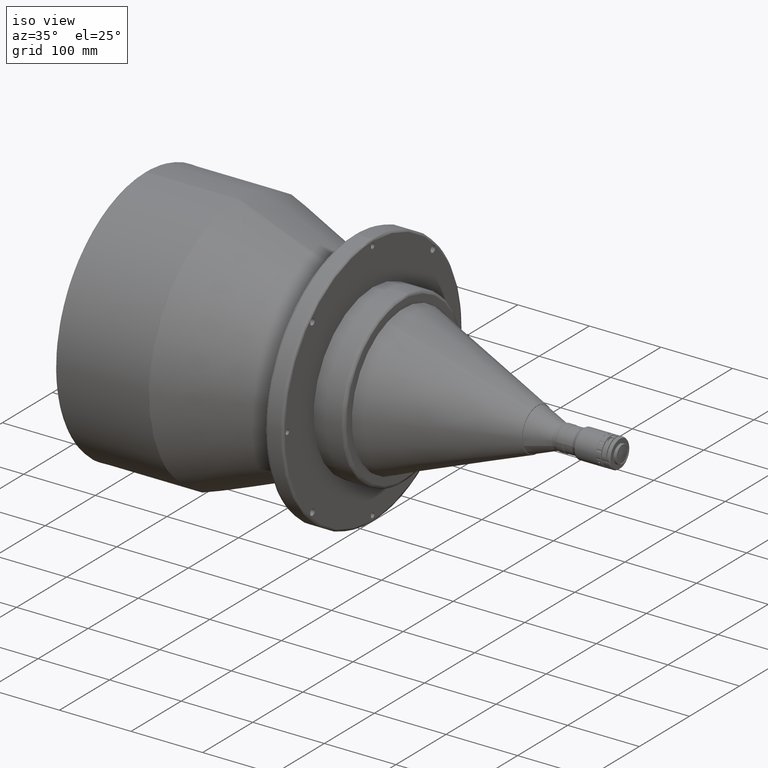
[diagram: clean part render]
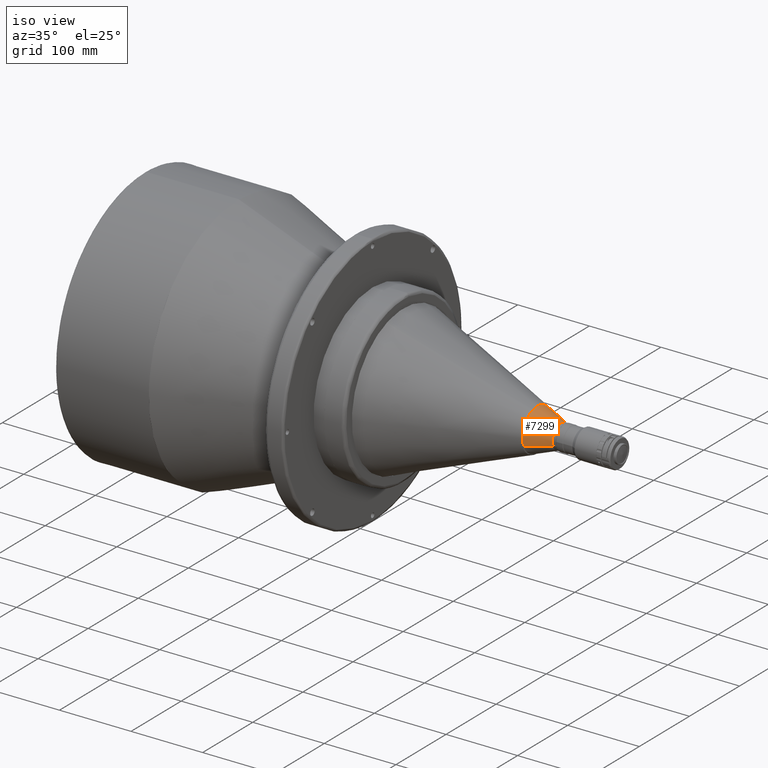
[diagram: same view with one face highlighted and labeled with its STEP entity id]
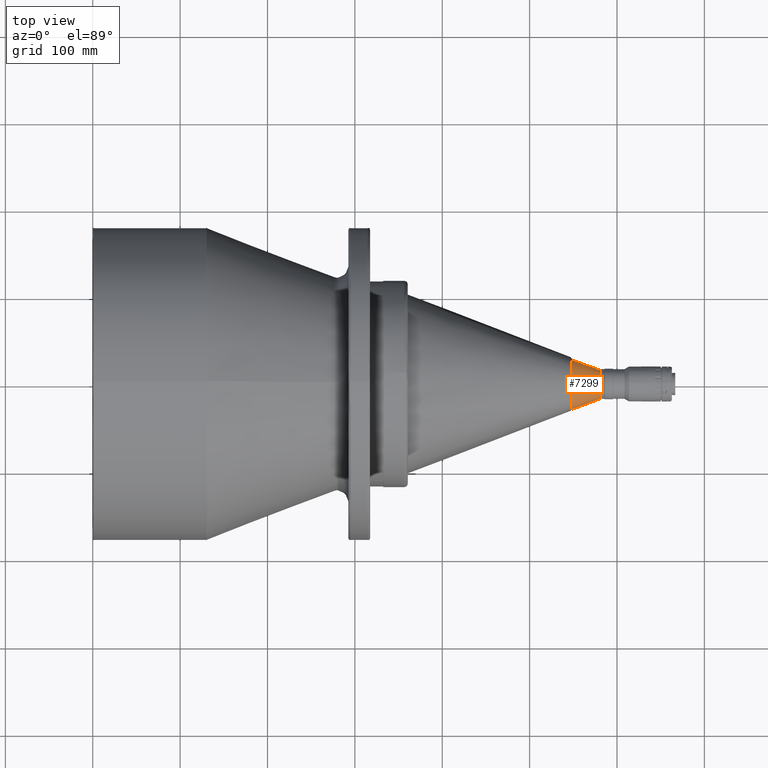
[diagram: same view with one face highlighted and labeled with its STEP entity id]
A machine part, iso view. The second image highlights one B-rep face of the part: STEP entity #7299.
A second angle (top view) of the same face is appended — the face is thin or edge-on in the first view.
In plain terms, the highlighted conical surface has half-angle 20.746 deg.
Its self-contained STEP definition (entity closure, byte-faithful):
#338 = CIRCLE ( 'NONE', #5878, 29.49999999999999600 ) ;
#1362 = DIRECTION ( 'NONE',  ( 0.0000000000000000000, 0.9362080902781836400, 0.3514461718352849300 ) ) ;
#2123 = AXIS2_PLACEMENT_3D ( 'NONE', #8940, #3070, #3821 ) ;
#2321 = LINE ( 'NONE', #2486, #4179 ) ;
#2486 = CARTESIAN_POINT ( 'NONE',  ( 580.5000000000000000, 15.91553753472912200, 5.974584921199843600 ) ) ;
#2767 = CARTESIAN_POINT ( 'NONE',  ( 580.5000000000000000, -15.91553753472912200, -5.974584921199845400 ) ) ;
#2900 = EDGE_CURVE ( 'NONE', #5660, #7871, #338, .T. ) ;
#3070 = DIRECTION ( 'NONE',  ( 1.000000000000000000, -0.0000000000000000000, -0.0000000000000000000 ) ) ;
#3821 = DIRECTION ( 'NONE',  ( 0.0000000000000000000, 0.9362080902781836400, 0.3514461718352849300 ) ) ;
#3995 = EDGE_CURVE ( 'NONE', #4570, #8467, #8504, .T. ) ;
#4179 = VECTOR ( 'NONE', #7727, 1000.000000000000200 ) ;
#4184 = DIRECTION ( 'NONE',  ( 0.0000000000000000000, 0.9362080902781836400, 0.3514461718352848700 ) ) ;
#4570 = VERTEX_POINT ( 'NONE', #6485 ) ;
#4793 = ORIENTED_EDGE ( 'NONE', *, *, #5562, .F. ) ;
#4794 = CARTESIAN_POINT ( 'NONE',  ( 580.5000000000000000, -15.91553753472912200, -5.974584921199845400 ) ) ;
#5024 = DIRECTION ( 'NONE',  ( -1.000000000000000000, 0.0000000000000000000, 0.0000000000000000000 ) ) ;
#5562 = EDGE_CURVE ( 'NONE', #8467, #7871, #5976, .T. ) ;
#5660 = VERTEX_POINT ( 'NONE', #6016 ) ;
#5756 = VECTOR ( 'NONE', #9548, 1000.000000000000200 ) ;
#5878 = AXIS2_PLACEMENT_3D ( 'NONE', #8656, #7817, #4184 ) ;
#5888 = CARTESIAN_POINT ( 'NONE',  ( 580.5000000000000000, 0.0000000000000000000, 0.0000000000000000000 ) ) ;
#5976 = LINE ( 'NONE', #2767, #5756 ) ;
#6016 = CARTESIAN_POINT ( 'NONE',  ( 547.5000000000000000, 27.61813866320642700, 10.36766206914090700 ) ) ;
#6485 = CARTESIAN_POINT ( 'NONE',  ( 580.5000000000000000, 15.91553753472912200, 5.974584921199843600 ) ) ;
#7299 = ADVANCED_FACE ( 'NONE', ( #7609 ), #7714, .T. ) ;
#7592 = EDGE_CURVE ( 'NONE', #4570, #5660, #2321, .T. ) ;
#7609 = FACE_OUTER_BOUND ( 'NONE', #8027, .T. ) ;
#7714 = CONICAL_SURFACE ( 'NONE', #8732, 17.00000000000000000, 0.3620874076937284400 ) ;
#7727 = DIRECTION ( 'NONE',  ( -0.9351594452898587300, 0.3316302418107667200, 0.1244917451146702200 ) ) ;
#7817 = DIRECTION ( 'NONE',  ( 1.000000000000000000, -0.0000000000000000000, -0.0000000000000000000 ) ) ;
#7871 = VERTEX_POINT ( 'NONE', #8070 ) ;
#8027 = EDGE_LOOP ( 'NONE', ( #4793, #9622, #9035, #8213 ) ) ;
#8070 = CARTESIAN_POINT ( 'NONE',  ( 547.5000000000000000, -27.61813866320642700, -10.36766206914091100 ) ) ;
#8213 = ORIENTED_EDGE ( 'NONE', *, *, #2900, .T. ) ;
#8467 = VERTEX_POINT ( 'NONE', #4794 ) ;
#8504 = CIRCLE ( 'NONE', #2123, 17.00000000000000000 ) ;
#8656 = CARTESIAN_POINT ( 'NONE',  ( 547.5000000000000000, 0.0000000000000000000, 0.0000000000000000000 ) ) ;
#8732 = AXIS2_PLACEMENT_3D ( 'NONE', #5888, #5024, #1362 ) ;
#8940 = CARTESIAN_POINT ( 'NONE',  ( 580.5000000000000000, 0.0000000000000000000, 0.0000000000000000000 ) ) ;
#9035 = ORIENTED_EDGE ( 'NONE', *, *, #7592, .T. ) ;
#9548 = DIRECTION ( 'NONE',  ( -0.9351594452898587300, -0.3316302418107667200, -0.1244917451146702600 ) ) ;
#9622 = ORIENTED_EDGE ( 'NONE', *, *, #3995, .F. ) ;